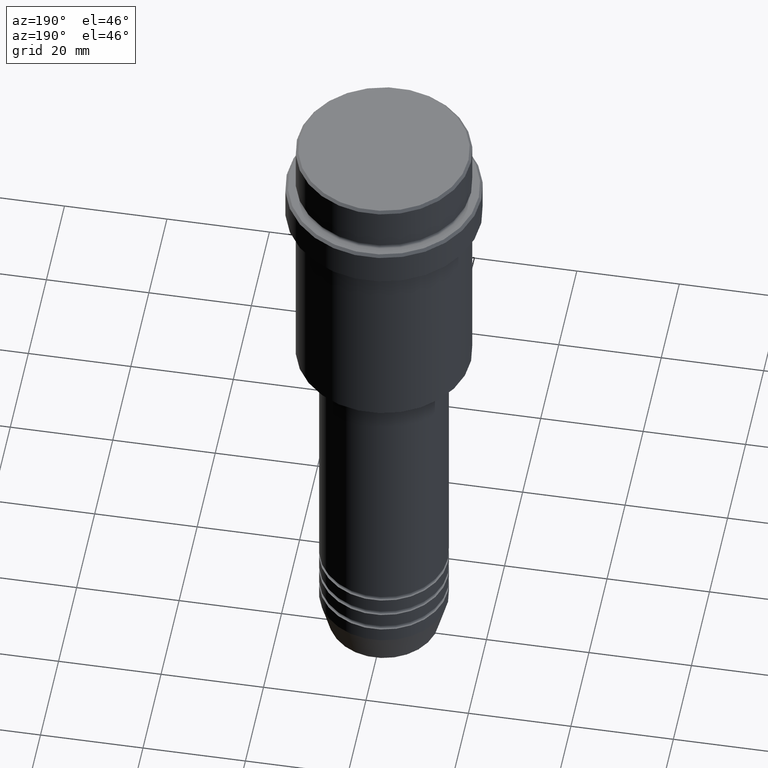
[diagram: clean part render]
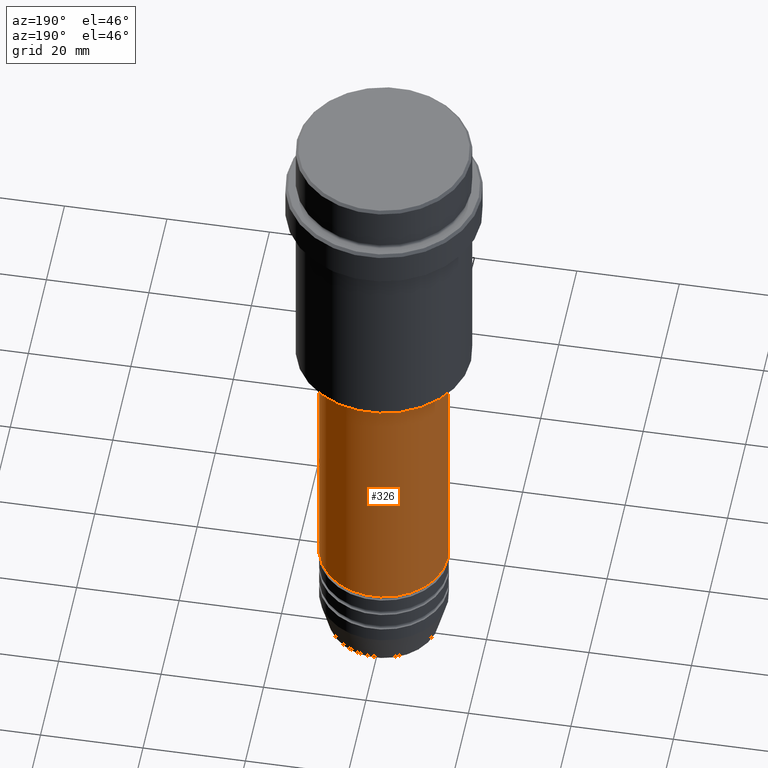
[diagram: same view with one face highlighted and labeled with its STEP entity id]
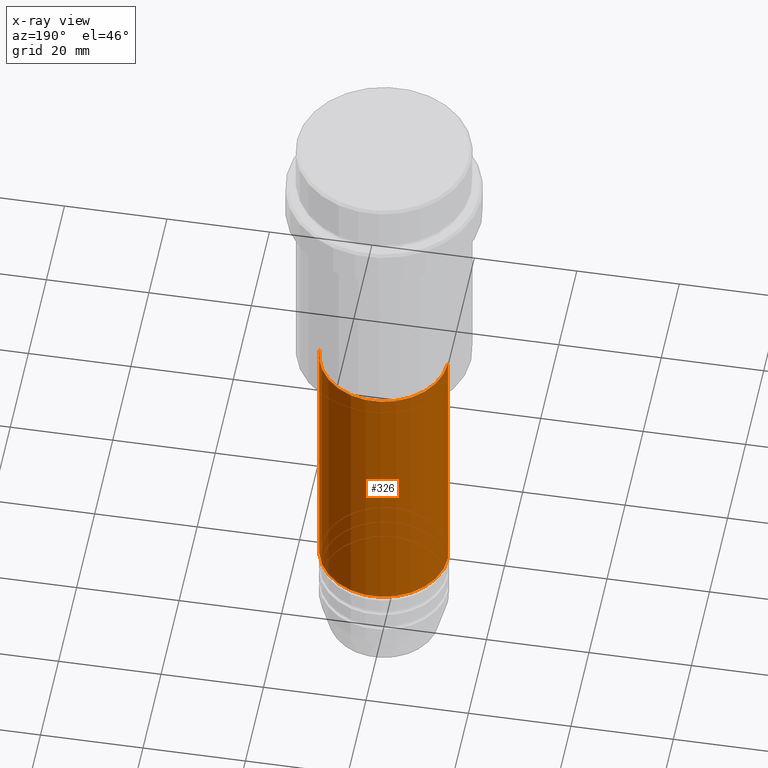
[diagram: x-ray of the same camera — body ghosted, the highlighted face saturated]
A machine part, auxiliary view. The second image highlights one B-rep face of the part: STEP entity #326.
The next image is the same camera in x-ray: the body ghosted, the highlighted face saturated — about 0% of this face is hidden behind the body in this view.
In plain terms, the highlighted cylindrical surface (partial cylindrical patch) has radius 12.5 mm, axis along (-0, -0, 1).
Its self-contained STEP definition (entity closure, byte-faithful):
#11 = CARTESIAN_POINT ( 'NONE',  ( 12.50000000000000000, 0.000000000000000000, -110.9999999999998721 ) ) ;
#35 = EDGE_CURVE ( 'NONE', #381, #594, #134, .T. ) ;
#54 = VERTEX_POINT ( 'NONE', #1073 ) ;
#59 = DIRECTION ( 'NONE',  ( -0.000000000000000000, -0.000000000000000000, 1.000000000000000000 ) ) ;
#72 = ORIENTED_EDGE ( 'NONE', *, *, #886, .T. ) ;
#79 = ORIENTED_EDGE ( 'NONE', *, *, #689, .T. ) ;
#91 = AXIS2_PLACEMENT_3D ( 'NONE', #175, #59, #1117 ) ;
#102 = CARTESIAN_POINT ( 'NONE',  ( 12.50000000000000000, 0.000000000000000000, 0.000000000000000000 ) ) ;
#134 = LINE ( 'NONE', #102, #866 ) ;
#175 = CARTESIAN_POINT ( 'NONE',  ( 0.000000000000000000, 0.000000000000000000, -110.9999999999998721 ) ) ;
#185 = CIRCLE ( 'NONE', #91, 12.50000000000000000 ) ;
#326 = ADVANCED_FACE ( 'NONE', ( #836 ), #1382, .T. ) ;
#348 = CARTESIAN_POINT ( 'NONE',  ( 0.000000000000000000, 0.000000000000000000, 0.000000000000000000 ) ) ;
#358 = EDGE_CURVE ( 'NONE', #594, #1110, #1000, .T. ) ;
#381 = VERTEX_POINT ( 'NONE', #11 ) ;
#398 = ORIENTED_EDGE ( 'NONE', *, *, #35, .F. ) ;
#407 = VECTOR ( 'NONE', #1191, 1000.000000000000000 ) ;
#450 = DIRECTION ( 'NONE',  ( -0.000000000000000000, -0.000000000000000000, 1.000000000000000000 ) ) ;
#551 = CARTESIAN_POINT ( 'NONE',  ( 0.000000000000000000, 0.000000000000000000, -57.00000000000000000 ) ) ;
#594 = VERTEX_POINT ( 'NONE', #1284 ) ;
#628 = LINE ( 'NONE', #1092, #407 ) ;
#659 = CARTESIAN_POINT ( 'NONE',  ( -12.50000000000000000, 1.530808498934191521E-15, -57.00000000000000000 ) ) ;
#689 = EDGE_CURVE ( 'NONE', #54, #1110, #628, .T. ) ;
#726 = DIRECTION ( 'NONE',  ( -0.000000000000000000, -0.000000000000000000, 1.000000000000000000 ) ) ;
#836 = FACE_OUTER_BOUND ( 'NONE', #1339, .T. ) ;
#866 = VECTOR ( 'NONE', #726, 1000.000000000000000 ) ;
#886 = EDGE_CURVE ( 'NONE', #381, #54, #185, .T. ) ;
#922 = AXIS2_PLACEMENT_3D ( 'NONE', #348, #1193, #1221 ) ;
#1000 = CIRCLE ( 'NONE', #1271, 12.50000000000000000 ) ;
#1050 = ORIENTED_EDGE ( 'NONE', *, *, #358, .F. ) ;
#1073 = CARTESIAN_POINT ( 'NONE',  ( -12.50000000000000000, 1.530808498934191521E-15, -110.9999999999998721 ) ) ;
#1092 = CARTESIAN_POINT ( 'NONE',  ( -12.50000000000000000, 1.530808498934191521E-15, 0.000000000000000000 ) ) ;
#1110 = VERTEX_POINT ( 'NONE', #659 ) ;
#1117 = DIRECTION ( 'NONE',  ( 1.000000000000000000, 0.000000000000000000, 0.000000000000000000 ) ) ;
#1191 = DIRECTION ( 'NONE',  ( -0.000000000000000000, -0.000000000000000000, 1.000000000000000000 ) ) ;
#1193 = DIRECTION ( 'NONE',  ( -0.000000000000000000, -0.000000000000000000, 1.000000000000000000 ) ) ;
#1221 = DIRECTION ( 'NONE',  ( 1.000000000000000000, 0.000000000000000000, 0.000000000000000000 ) ) ;
#1271 = AXIS2_PLACEMENT_3D ( 'NONE', #551, #450, #1342 ) ;
#1284 = CARTESIAN_POINT ( 'NONE',  ( 12.50000000000000000, 0.000000000000000000, -57.00000000000000000 ) ) ;
#1339 = EDGE_LOOP ( 'NONE', ( #72, #79, #1050, #398 ) ) ;
#1342 = DIRECTION ( 'NONE',  ( 1.000000000000000000, 0.000000000000000000, 0.000000000000000000 ) ) ;
#1382 = CYLINDRICAL_SURFACE ( 'NONE', #922, 12.50000000000000000 ) ;